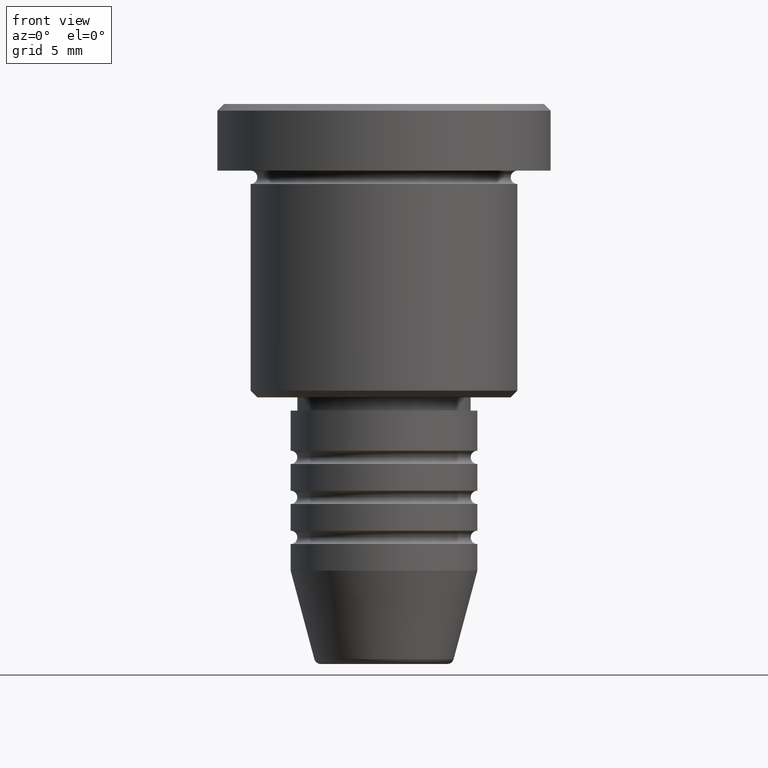
[diagram: clean part render]
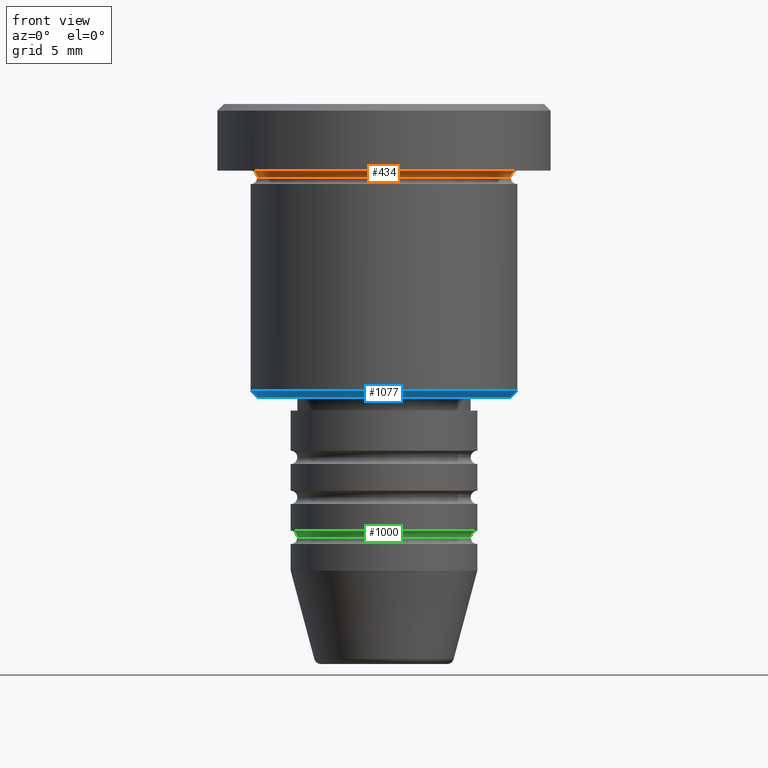
[diagram: same view with three faces highlighted in distinct colors, each labeled with its STEP entity id]
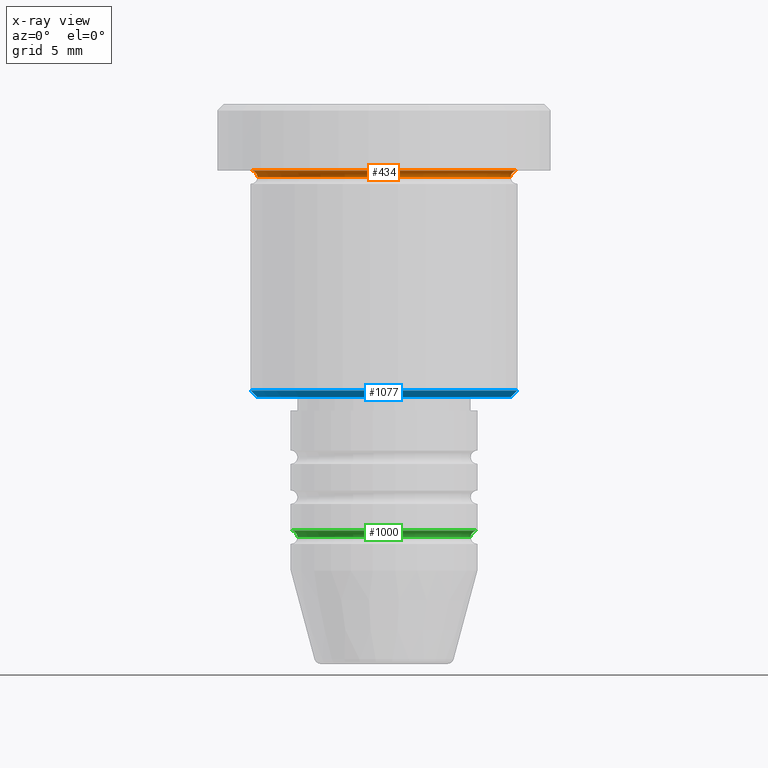
[diagram: x-ray of the same camera — body ghosted, the three highlighted faces saturated]
A machine part, front view with three faces highlighted in distinct colors.
The next image is the same camera in x-ray (body ghosted, the three faces saturated) — at least one of them is partly hidden behind the body in this view.
Their STEP definitions:

[orange] entity #434 — the highlighted toroidal blend (fillet) surface has major radius 10 mm and minor (blend) radius 0.5 mm.
#6 = CARTESIAN_POINT ( 'NONE',  ( 0.000000000000000000, 0.000000000000000000, -5.500000000000000000 ) ) ;
#16 = AXIS2_PLACEMENT_3D ( 'NONE', #242, #875, #1156 ) ;
#20 = DIRECTION ( 'NONE',  ( 0.000000000000000000, 0.000000000000000000, -1.000000000000000000 ) ) ;
#70 = VERTEX_POINT ( 'NONE', #583 ) ;
#86 = VERTEX_POINT ( 'NONE', #586 ) ;
#177 = ORIENTED_EDGE ( 'NONE', *, *, #859, .F. ) ;
#178 = DIRECTION ( 'NONE',  ( -0.000000000000000000, -0.000000000000000000, 1.000000000000000000 ) ) ;
#232 = CIRCLE ( 'NONE', #823, 10.00000000000000000 ) ;
#242 = CARTESIAN_POINT ( 'NONE',  ( 10.00000000000000000, 1.224646799147353256E-15, -5.500000000000000000 ) ) ;
#272 = EDGE_CURVE ( 'NONE', #354, #963, #459, .T. ) ;
#280 = CARTESIAN_POINT ( 'NONE',  ( 0.000000000000000000, 0.000000000000000000, -5.000000000000000000 ) ) ;
#281 = DIRECTION ( 'NONE',  ( -0.000000000000000000, -0.000000000000000000, 1.000000000000000000 ) ) ;
#303 = EDGE_LOOP ( 'NONE', ( #1008, #496, #177, #985 ) ) ;
#354 = VERTEX_POINT ( 'NONE', #829 ) ;
#377 = CARTESIAN_POINT ( 'NONE',  ( 0.000000000000000000, 0.000000000000000000, -5.500000000000000000 ) ) ;
#427 = AXIS2_PLACEMENT_3D ( 'NONE', #6, #20, #466 ) ;
#434 = ADVANCED_FACE ( 'NONE', ( #646 ), #463, .F. ) ;
#443 = AXIS2_PLACEMENT_3D ( 'NONE', #377, #281, #739 ) ;
#459 = CIRCLE ( 'NONE', #16, 0.5000000000000004441 ) ;
#463 = TOROIDAL_SURFACE ( 'NONE', #427, 10.00000000000000000, 0.5000000000000000000 ) ;
#466 = DIRECTION ( 'NONE',  ( -1.000000000000000000, 0.000000000000000000, 0.000000000000000000 ) ) ;
#489 = EDGE_CURVE ( 'NONE', #86, #354, #821, .T. ) ;
#496 = ORIENTED_EDGE ( 'NONE', *, *, #272, .T. ) ;
#527 = DIRECTION ( 'NONE',  ( 0.000000000000000000, 0.000000000000000000, -1.000000000000000000 ) ) ;
#547 = DIRECTION ( 'NONE',  ( -1.000000000000000000, 0.000000000000000000, 0.000000000000000000 ) ) ;
#583 = CARTESIAN_POINT ( 'NONE',  ( -10.00000000000000000, 0.000000000000000000, -4.999999999999999112 ) ) ;
#586 = CARTESIAN_POINT ( 'NONE',  ( -9.500000000000000000, 1.194030629168669469E-15, -5.500000000000000000 ) ) ;
#588 = CARTESIAN_POINT ( 'NONE',  ( 10.00000000000000000, 1.224646799147353256E-15, -4.999999999999999112 ) ) ;
#646 = FACE_OUTER_BOUND ( 'NONE', #303, .T. ) ;
#656 = EDGE_CURVE ( 'NONE', #86, #70, #1036, .T. ) ;
#739 = DIRECTION ( 'NONE',  ( 1.000000000000000000, 0.000000000000000000, 0.000000000000000000 ) ) ;
#821 = CIRCLE ( 'NONE', #443, 9.500000000000000000 ) ;
#823 = AXIS2_PLACEMENT_3D ( 'NONE', #280, #178, #547 ) ;
#829 = CARTESIAN_POINT ( 'NONE',  ( 9.500000000000000000, 0.000000000000000000, -5.500000000000000000 ) ) ;
#859 = EDGE_CURVE ( 'NONE', #70, #963, #232, .T. ) ;
#875 = DIRECTION ( 'NONE',  ( -1.224646799147353207E-16, 1.000000000000000000, 0.000000000000000000 ) ) ;
#896 = AXIS2_PLACEMENT_3D ( 'NONE', #1155, #1071, #527 ) ;
#963 = VERTEX_POINT ( 'NONE', #588 ) ;
#985 = ORIENTED_EDGE ( 'NONE', *, *, #656, .F. ) ;
#1008 = ORIENTED_EDGE ( 'NONE', *, *, #489, .T. ) ;
#1036 = CIRCLE ( 'NONE', #896, 0.5000000000000004441 ) ;
#1071 = DIRECTION ( 'NONE',  ( -0.000000000000000000, -1.000000000000000000, -0.000000000000000000 ) ) ;
#1155 = CARTESIAN_POINT ( 'NONE',  ( -10.00000000000000000, 0.000000000000000000, -5.500000000000000000 ) ) ;
#1156 = DIRECTION ( 'NONE',  ( -1.000000000000000000, -1.224646799147353454E-16, 0.000000000000000000 ) ) ;

[blue] entity #1077 — the highlighted conical surface has half-angle 45 deg.
#26 = CARTESIAN_POINT ( 'NONE',  ( 0.000000000000000000, 0.000000000000000000, -21.49999999999999645 ) ) ;
#45 = DIRECTION ( 'NONE',  ( 1.000000000000000000, 0.000000000000000000, 0.000000000000000000 ) ) ;
#74 = CIRCLE ( 'NONE', #786, 10.00000000000000000 ) ;
#120 = CIRCLE ( 'NONE', #506, 9.499999999999991118 ) ;
#155 = DIRECTION ( 'NONE',  ( -0.000000000000000000, -0.000000000000000000, 1.000000000000000000 ) ) ;
#159 = DIRECTION ( 'NONE',  ( 0.7071067811865536790, 0.000000000000000000, 0.7071067811865414665 ) ) ;
#214 = VERTEX_POINT ( 'NONE', #805 ) ;
#226 = FACE_OUTER_BOUND ( 'NONE', #228, .T. ) ;
#228 = EDGE_LOOP ( 'NONE', ( #892, #758, #1095, #273 ) ) ;
#246 = DIRECTION ( 'NONE',  ( 0.000000000000000000, 0.000000000000000000, -1.000000000000000000 ) ) ;
#273 = ORIENTED_EDGE ( 'NONE', *, *, #874, .F. ) ;
#332 = VECTOR ( 'NONE', #159, 1000.000000000000000 ) ;
#350 = CARTESIAN_POINT ( 'NONE',  ( 0.000000000000000000, 0.000000000000000000, -21.99999999999999645 ) ) ;
#358 = LINE ( 'NONE', #521, #560 ) ;
#373 = CARTESIAN_POINT ( 'NONE',  ( 10.00000000000000000, 0.000000000000000000, -21.49999999999999645 ) ) ;
#388 = VERTEX_POINT ( 'NONE', #733 ) ;
#506 = AXIS2_PLACEMENT_3D ( 'NONE', #350, #246, #964 ) ;
#521 = CARTESIAN_POINT ( 'NONE',  ( -10.00000000000000000, 1.224646799147353256E-15, -21.49999999999999645 ) ) ;
#560 = VECTOR ( 'NONE', #889, 1000.000000000000000 ) ;
#608 = CARTESIAN_POINT ( 'NONE',  ( 9.499999999999991118, 0.000000000000000000, -21.99999999999999645 ) ) ;
#629 = LINE ( 'NONE', #373, #332 ) ;
#677 = VERTEX_POINT ( 'NONE', #796 ) ;
#733 = CARTESIAN_POINT ( 'NONE',  ( 10.00000000000000000, 0.000000000000000000, -21.49999999999999645 ) ) ;
#742 = EDGE_CURVE ( 'NONE', #763, #214, #120, .T. ) ;
#758 = ORIENTED_EDGE ( 'NONE', *, *, #742, .F. ) ;
#763 = VERTEX_POINT ( 'NONE', #608 ) ;
#765 = EDGE_CURVE ( 'NONE', #214, #677, #358, .T. ) ;
#786 = AXIS2_PLACEMENT_3D ( 'NONE', #1087, #1181, #1093 ) ;
#796 = CARTESIAN_POINT ( 'NONE',  ( -10.00000000000000000, 1.224646799147353256E-15, -21.49999999999999645 ) ) ;
#805 = CARTESIAN_POINT ( 'NONE',  ( -9.499999999999991118, 1.194030629168668878E-15, -21.99999999999999645 ) ) ;
#874 = EDGE_CURVE ( 'NONE', #677, #388, #74, .T. ) ;
#889 = DIRECTION ( 'NONE',  ( -0.7071067811865536790, 8.659560562355009279E-17, 0.7071067811865414665 ) ) ;
#892 = ORIENTED_EDGE ( 'NONE', *, *, #765, .F. ) ;
#898 = AXIS2_PLACEMENT_3D ( 'NONE', #26, #155, #45 ) ;
#964 = DIRECTION ( 'NONE',  ( -1.000000000000000000, 0.000000000000000000, 0.000000000000000000 ) ) ;
#1077 = ADVANCED_FACE ( 'NONE', ( #226 ), #1109, .T. ) ;
#1087 = CARTESIAN_POINT ( 'NONE',  ( 0.000000000000000000, 0.000000000000000000, -21.49999999999999645 ) ) ;
#1093 = DIRECTION ( 'NONE',  ( -1.000000000000000000, 0.000000000000000000, 0.000000000000000000 ) ) ;
#1095 = ORIENTED_EDGE ( 'NONE', *, *, #1120, .T. ) ;
#1109 = CONICAL_SURFACE ( 'NONE', #898, 10.00000000000000000, 0.7853981633974569387 ) ;
#1120 = EDGE_CURVE ( 'NONE', #763, #388, #629, .T. ) ;
#1181 = DIRECTION ( 'NONE',  ( -0.000000000000000000, -0.000000000000000000, 1.000000000000000000 ) ) ;

[green] entity #1000 — the highlighted toroidal blend (fillet) surface has major radius 7 mm and minor (blend) radius 0.5 mm.
#31 = FACE_OUTER_BOUND ( 'NONE', #806, .T. ) ;
#88 = CARTESIAN_POINT ( 'NONE',  ( -7.000000000000000000, 8.572527594031473190E-16, -31.99999999999997868 ) ) ;
#99 = ORIENTED_EDGE ( 'NONE', *, *, #436, .T. ) ;
#110 = DIRECTION ( 'NONE',  ( -0.000000000000000000, -0.000000000000000000, 1.000000000000000000 ) ) ;
#189 = AXIS2_PLACEMENT_3D ( 'NONE', #275, #110, #1174 ) ;
#259 = CARTESIAN_POINT ( 'NONE',  ( 6.500000000000000888, 0.000000000000000000, -32.49999999999998579 ) ) ;
#262 = CARTESIAN_POINT ( 'NONE',  ( -6.500000000000000888, 8.266365894244635319E-16, -32.49999999999998579 ) ) ;
#275 = CARTESIAN_POINT ( 'NONE',  ( 0.000000000000000000, 0.000000000000000000, -31.99999999999997868 ) ) ;
#282 = ORIENTED_EDGE ( 'NONE', *, *, #977, .F. ) ;
#288 = CARTESIAN_POINT ( 'NONE',  ( 7.000000000000000888, 8.572527594031474176E-16, -32.49999999999997868 ) ) ;
#343 = EDGE_CURVE ( 'NONE', #780, #538, #1179, .T. ) ;
#365 = EDGE_CURVE ( 'NONE', #414, #538, #802, .T. ) ;
#398 = DIRECTION ( 'NONE',  ( -0.000000000000000000, -0.000000000000000000, 1.000000000000000000 ) ) ;
#414 = VERTEX_POINT ( 'NONE', #88 ) ;
#436 = EDGE_CURVE ( 'NONE', #1176, #780, #973, .T. ) ;
#454 = DIRECTION ( 'NONE',  ( -1.224646799147353207E-16, 1.000000000000000000, 0.000000000000000000 ) ) ;
#460 = DIRECTION ( 'NONE',  ( 1.000000000000000000, 0.000000000000000000, 0.000000000000000000 ) ) ;
#484 = AXIS2_PLACEMENT_3D ( 'NONE', #822, #398, #460 ) ;
#493 = CARTESIAN_POINT ( 'NONE',  ( 0.000000000000000000, 0.000000000000000000, -32.49999999999997868 ) ) ;
#498 = DIRECTION ( 'NONE',  ( -0.000000000000000000, -1.000000000000000000, -0.000000000000000000 ) ) ;
#538 = VERTEX_POINT ( 'NONE', #1139 ) ;
#558 = AXIS2_PLACEMENT_3D ( 'NONE', #288, #454, #915 ) ;
#623 = AXIS2_PLACEMENT_3D ( 'NONE', #493, #1122, #1051 ) ;
#628 = AXIS2_PLACEMENT_3D ( 'NONE', #776, #498, #771 ) ;
#658 = ORIENTED_EDGE ( 'NONE', *, *, #343, .T. ) ;
#750 = CIRCLE ( 'NONE', #628, 0.5000000000000004441 ) ;
#771 = DIRECTION ( 'NONE',  ( 0.000000000000000000, 0.000000000000000000, -1.000000000000000000 ) ) ;
#776 = CARTESIAN_POINT ( 'NONE',  ( -7.000000000000000888, 0.000000000000000000, -32.49999999999997868 ) ) ;
#780 = VERTEX_POINT ( 'NONE', #259 ) ;
#802 = CIRCLE ( 'NONE', #189, 7.000000000000000000 ) ;
#806 = EDGE_LOOP ( 'NONE', ( #99, #658, #881, #282 ) ) ;
#822 = CARTESIAN_POINT ( 'NONE',  ( 0.000000000000000000, 0.000000000000000000, -32.49999999999998579 ) ) ;
#850 = TOROIDAL_SURFACE ( 'NONE', #623, 7.000000000000000888, 0.5000000000000000000 ) ;
#881 = ORIENTED_EDGE ( 'NONE', *, *, #365, .F. ) ;
#915 = DIRECTION ( 'NONE',  ( -1.000000000000000000, -1.224646799147351482E-16, 0.000000000000000000 ) ) ;
#973 = CIRCLE ( 'NONE', #484, 6.500000000000000888 ) ;
#977 = EDGE_CURVE ( 'NONE', #1176, #414, #750, .T. ) ;
#1000 = ADVANCED_FACE ( 'NONE', ( #31 ), #850, .F. ) ;
#1051 = DIRECTION ( 'NONE',  ( -1.000000000000000000, 0.000000000000000000, 0.000000000000000000 ) ) ;
#1122 = DIRECTION ( 'NONE',  ( 0.000000000000000000, 0.000000000000000000, -1.000000000000000000 ) ) ;
#1139 = CARTESIAN_POINT ( 'NONE',  ( 7.000000000000000000, 0.000000000000000000, -31.99999999999997868 ) ) ;
#1174 = DIRECTION ( 'NONE',  ( 1.000000000000000000, 0.000000000000000000, 0.000000000000000000 ) ) ;
#1176 = VERTEX_POINT ( 'NONE', #262 ) ;
#1179 = CIRCLE ( 'NONE', #558, 0.5000000000000004441 ) ;